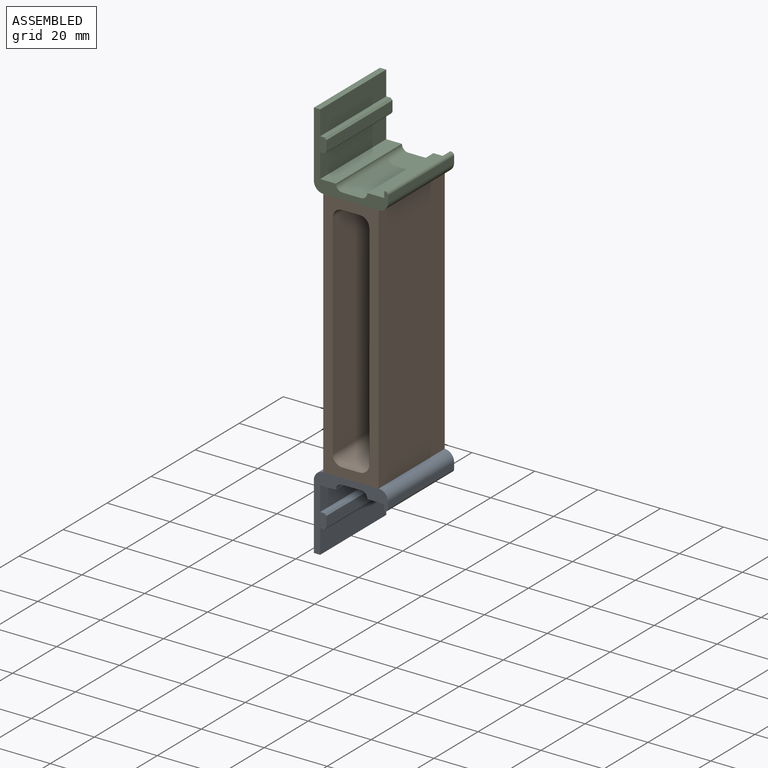
[diagram: assembled view]
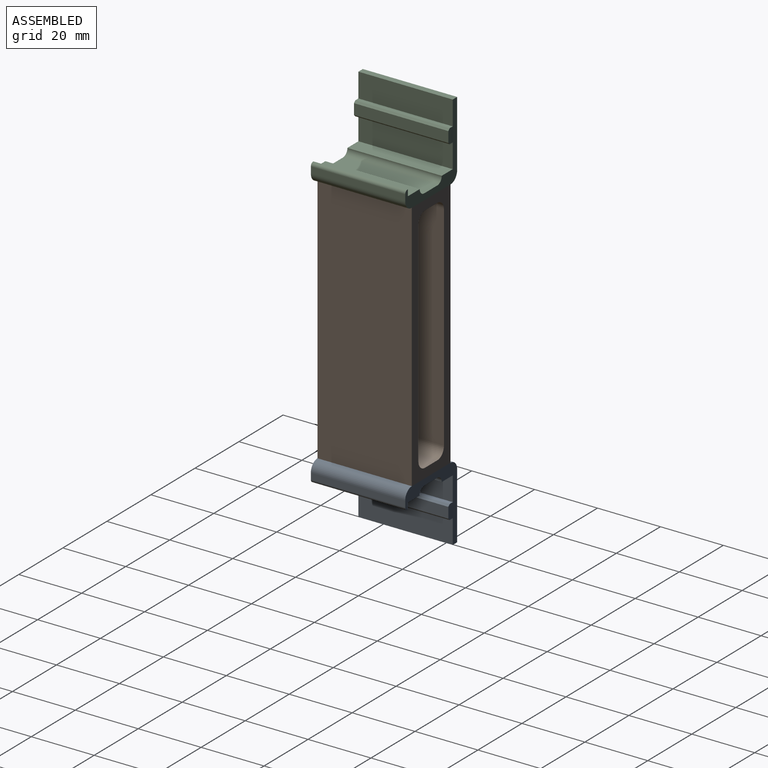
[diagram: assembled view, second angle]
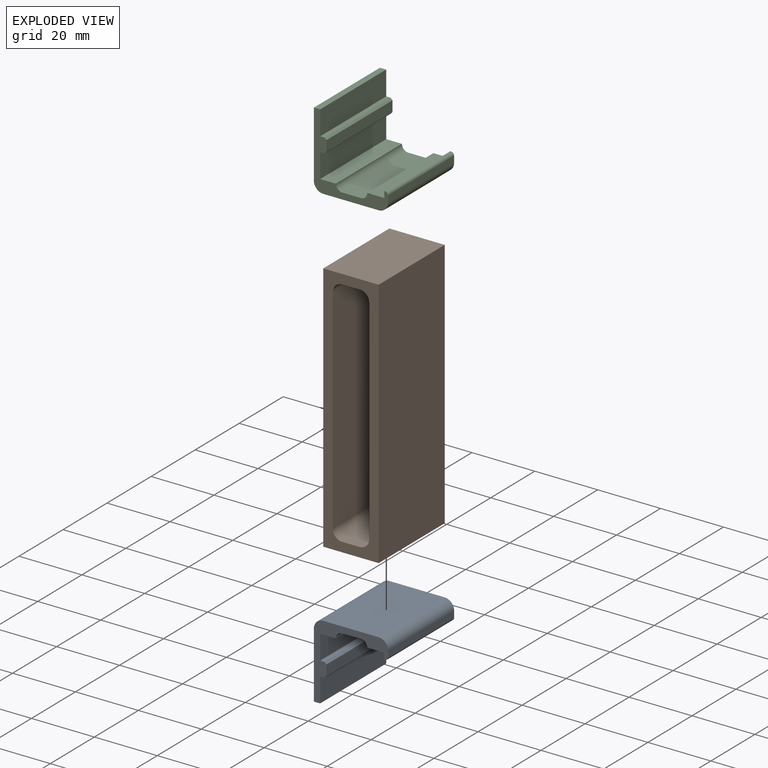
[diagram: exploded view]
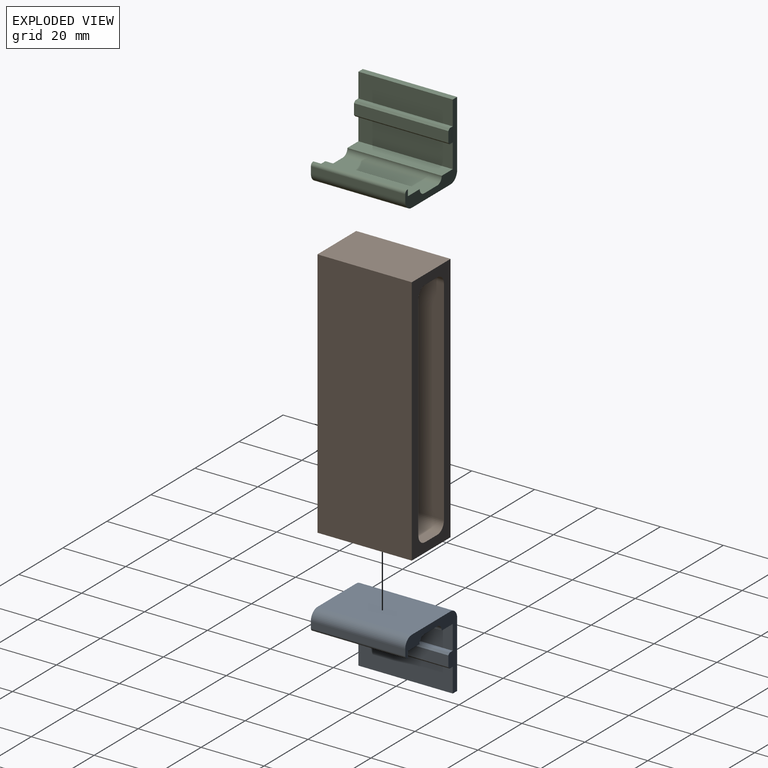
[diagram: exploded view, second angle]
ASSEMBLY  parts=3 mates=2
PART A: 23 faces, bbox 23.6x30x24 mm
  f0: plane 30x5mm, normal (0,0,1), area 150mm2, adj f1,f3,f6,f20
  f1: plane 24x23.6mm, normal (0,-1,0), area 123.3mm2, adj f0,f2,f4,f5,f6,f7,f8,f9
  f2: plane 30x7.7mm, normal (-1,0,0), area 231mm2, adj f1,f3,f8,f9
  f3: plane 24x23.6mm, normal (0,1,0), area 123.3mm2, adj f0,f2,f4,f5,f6,f7,f8,f9
  f4: plane 30x5.4mm, normal (0,0,1), area 162mm2, adj f1,f3,f14,f19
  f5: plane 30x17.6mm, normal (0,0,-1), area 528mm2, adj f1,f3,f21,f22
  f6: plane 30x7.7mm, normal (-1,0,0), area 231mm2, adj f0,f1,f3,f10
  f7: plane 30x21mm, normal (1,0,0), area 630mm2, adj f1,f3,f8,f22
  f8: plane 30x2mm, normal (0,0,1), area 60mm2, adj f1,f2,f3,f7
  f9: plane 30x1.4mm, normal (0,0,1), area 42mm2, adj f1,f2,f3,f12
  f10: plane 30x1.4mm, normal (0,0,-1), area 42mm2, adj f1,f3,f6,f13
  f11: plane 30x3.4mm, normal (-1,0,0), area 102mm2, adj f1,f3,f12,f13
  f12: plane 30x0.6mm, normal (-0.71,0,0.71), area 25.5mm2, adj f1,f3,f9,f11
  f13: plane 30x0.6mm, normal (-0.71,0,-0.71), area 25.5mm2, adj f1,f3,f10,f11
  f14: plane 30x2mm, normal (1,0,0), area 60mm2, adj f1,f3,f4,f16
  f15: plane 30x2mm, normal (-1,0,0), area 60mm2, adj f1,f3,f17,f21
  f16: plane 30x0.2mm, normal (0,0,1), area 6mm2, adj f1,f3,f14,f17
  f17: cylinder r=1mm len=30mm, axis (0,-1,0), area 47.1mm2, adj f1,f3,f15,f16
  f18: plane 30x6mm, normal (0,0,1), area 180mm2, adj f1,f3,f19,f20
  f19: cylinder r=2mm len=30mm, axis (0,-1,0), area 94.2mm2, adj f1,f3,f4,f18
  f20: cylinder r=2mm len=30mm, axis (0,1,0), area 94.2mm2, adj f0,f1,f3,f18
  f21: cylinder r=3mm len=30mm, axis (0,-1,0), area 141.4mm2, adj f1,f3,f5,f15
  f22: cylinder r=3mm len=30mm, axis (0,1,0), area 141.4mm2, adj f1,f3,f5,f7
PART B: 14 faces, bbox 17.6x30x80 mm
  f0: plane 80x17.6mm, normal (0,-1,0), area 557.3mm2, adj f2,f3,f4,f5,f6,f7,f8,f9
  f1: plane 80x17.6mm, normal (0,1,0), area 557.3mm2, adj f2,f3,f4,f5,f6,f7,f8,f9
  f2: plane 80x30mm, normal (1,0,0), area 2400mm2, adj f0,f1,f4,f5
  f3: plane 80x30mm, normal (-1,0,0), area 2400mm2, adj f0,f1,f4,f5
  f4: plane 30x17.6mm, normal (0,0,1), area 528mm2, adj f0,f1,f2,f3
  f5: plane 30x17.6mm, normal (0,0,-1), area 528mm2, adj f0,f1,f2,f3
  f6: plane 30x5.6mm, normal (0,0,1), area 168mm2, adj f0,f1,f10,f13
  f7: plane 68x30mm, normal (-1,0,0), area 2040mm2, adj f0,f1,f10,f11
  f8: plane 30x5.6mm, normal (0,0,-1), area 168mm2, adj f0,f1,f11,f12
  f9: plane 68x30mm, normal (1,0,0), area 2040mm2, adj f0,f1,f12,f13
  f10: cylinder r=3mm len=30mm, axis (0,-1,0), area 141.4mm2, adj f0,f1,f6,f7
  f11: cylinder r=3mm len=30mm, axis (0,1,0), area 141.4mm2, adj f0,f1,f7,f8
  f12: cylinder r=3mm len=30mm, axis (0,-1,0), area 141.4mm2, adj f0,f1,f8,f9
  f13: cylinder r=3mm len=30mm, axis (0,1,0), area 141.4mm2, adj f0,f1,f6,f9
PART C: same geometry as A
PLACE A rot(axis=(0,-1,0),180deg) t=(8.98,22.16,-31.6)mm
PLACE B t=(8.58,22.16,-31.6)mm
PLACE C rot(axis=(0,0,1),180deg) t=(8.98,22.16,48.4)mm
MATE fastened B.f5 <-> A.f5  axis (0,0,-1) through (-0.22,7.16,-31.6)mm
MATE fastened B.f4 <-> C.f5  axis (0,0,1) through (-0.22,7.16,48.4)mm
